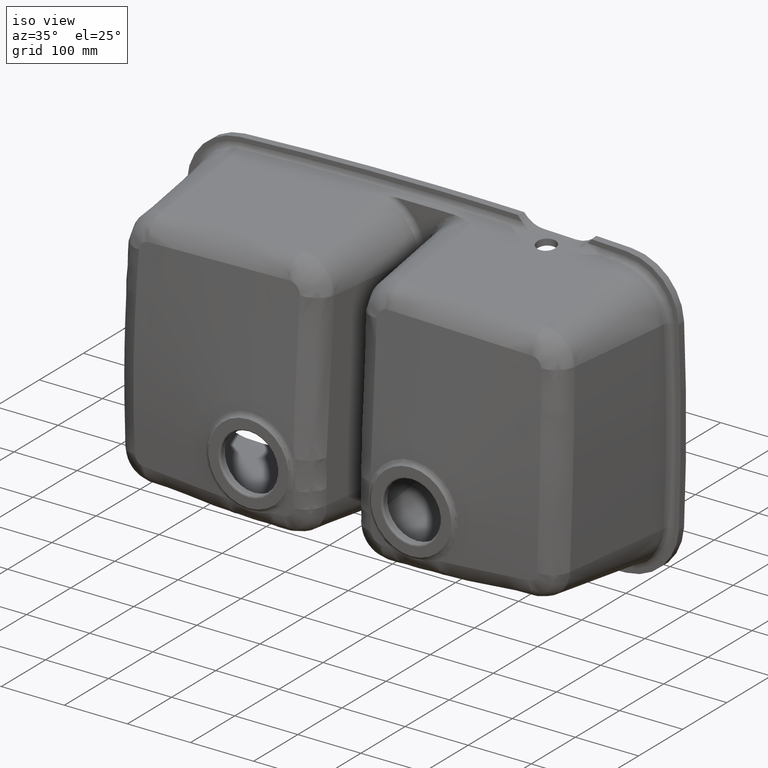
[diagram: clean part render]
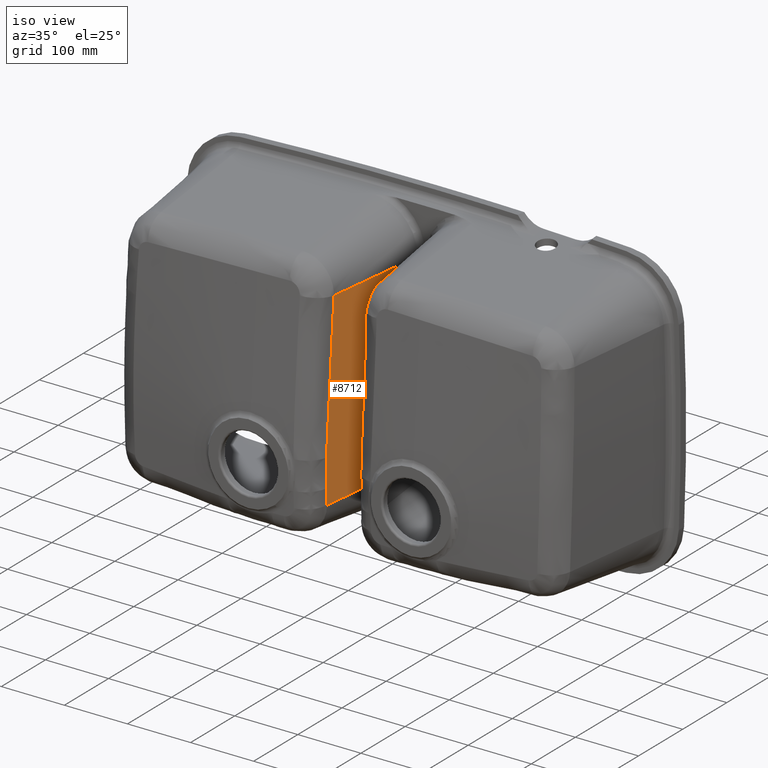
[diagram: same view with one face highlighted and labeled with its STEP entity id]
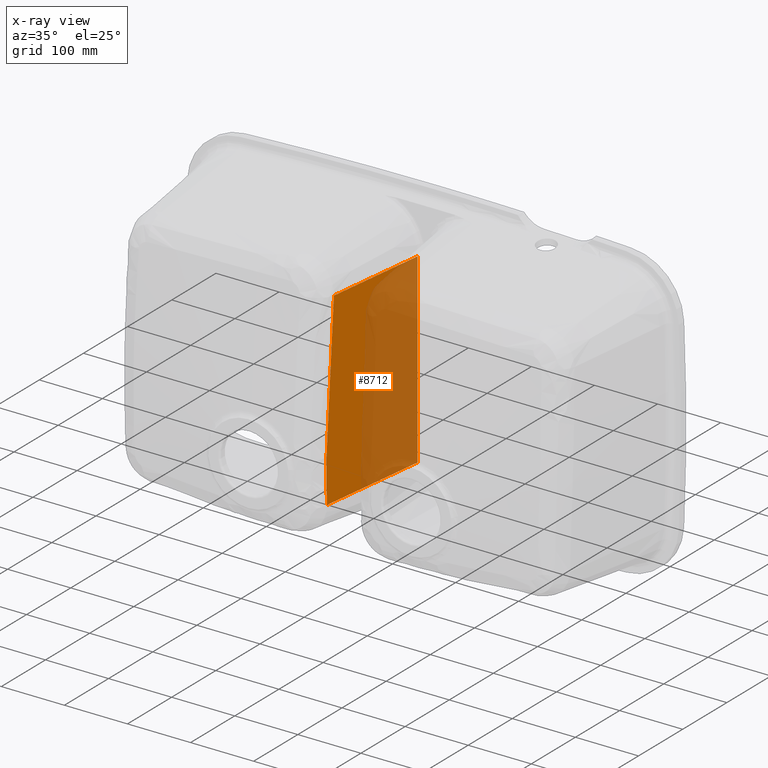
[diagram: x-ray of the same camera — body ghosted, the highlighted face saturated]
A machine part, iso view. The second image highlights one B-rep face of the part: STEP entity #8712.
The next image is the same camera in x-ray: the body ghosted, the highlighted face saturated — about 59% of this face is hidden behind the body in this view.
In plain terms, the highlighted planar face has unit normal (-0.9925, 0.1219, 0).
Its self-contained STEP definition (entity closure, byte-faithful):
#26 = CARTESIAN_POINT ( 'NONE',  ( 153.9304104006416200, 17.43875703980195600, -147.6775538111063200 ) ) ;
#224 = CARTESIAN_POINT ( 'NONE',  ( 177.2839146305344700, 207.6377857952190300, -147.6775538111063200 ) ) ;
#232 = CARTESIAN_POINT ( 'NONE',  ( 153.7793953125143400, 16.20883784624239600, -108.6161641611665900 ) ) ;
#463 = CARTESIAN_POINT ( 'NONE',  ( 154.0068806145349400, 18.06155695317069400, -41.45015478160866700 ) ) ;
#491 = B_SPLINE_CURVE_WITH_KNOTS ( 'NONE', 3,
 ( #2272, #1529, #3090, #4626 ),
 .UNSPECIFIED., .F., .F.,
 ( 4, 4 ),
 ( 0.2713427908445174600, 0.2957444310478757900 ),
 .UNSPECIFIED. ) ;
#788 = VECTOR ( 'NONE', #5444, 1000.000000000000000 ) ;
#803 = VERTEX_POINT ( 'NONE', #6916 ) ;
#1130 = DIRECTION ( 'NONE',  ( -0.9925461516413219800, 0.1218693434051477400, 9.354964095796231400E-017 ) ) ;
#1167 = EDGE_CURVE ( 'NONE', #7039, #1191, #491, .T. ) ;
#1191 = VERTEX_POINT ( 'NONE', #26 ) ;
#1251 = CARTESIAN_POINT ( 'NONE',  ( 153.8253751527536500, 16.58331359385415700, -79.34273651181291600 ) ) ;
#1288 = CARTESIAN_POINT ( 'NONE',  ( 175.3373163350951000, 191.7840149210555000, 147.6879393134511800 ) ) ;
#1294 = CARTESIAN_POINT ( 'NONE',  ( 154.4304017031977000, 21.51085941879286900, 15.31559253766440100 ) ) ;
#1529 = CARTESIAN_POINT ( 'NONE',  ( 153.8497299934948300, 16.78166785404874900, -131.3966274004560000 ) ) ;
#1759 = CARTESIAN_POINT ( 'NONE',  ( 153.7793953125142800, 16.20883784624237100, -93.97945033648974800 ) ) ;
#2020 = CARTESIAN_POINT ( 'NONE',  ( 155.2461820557504700, 28.15485721911706900, 109.8720365223787100 ) ) ;
#2052 = CARTESIAN_POINT ( 'NONE',  ( 155.5863013241900600, 30.92490636811789200, 147.6879393134511800 ) ) ;
#2272 = CARTESIAN_POINT ( 'NONE',  ( 153.8253751527536200, 16.58331359385418200, -123.2528779858434100 ) ) ;
#2606 = VERTEX_POINT ( 'NONE', #1251 ) ;
#2753 = LINE ( 'NONE', #1288, #3368 ) ;
#2803 = CARTESIAN_POINT ( 'NONE',  ( 154.7471167601119900, 24.09029656125872200, 53.14280966604947300 ) ) ;
#2805 = EDGE_LOOP ( 'NONE', ( #6669, #4546, #3649, #5955, #8776, #5104 ) ) ;
#2834 = CARTESIAN_POINT ( 'NONE',  ( 153.8537303172505800, 16.81424787653928000, -69.86136249148019300 ) ) ;
#3090 = CARTESIAN_POINT ( 'NONE',  ( 153.8862519037006400, 17.07911494297597300, -139.5378755558169000 ) ) ;
#3368 = VECTOR ( 'NONE', #9702, 1000.000000000000000 ) ;
#3570 = VERTEX_POINT ( 'NONE', #7402 ) ;
#3588 = CARTESIAN_POINT ( 'NONE',  ( 154.9120008076480700, 25.43316936483964600, 72.05326310415468100 ) ) ;
#3649 = ORIENTED_EDGE ( 'NONE', *, *, #9625, .T. ) ;
#3792 = VECTOR ( 'NONE', #4166, 1000.000000000000000 ) ;
#3874 = B_SPLINE_CURVE_WITH_KNOTS ( 'NONE', 3,
 ( #2052, #7467, #2020, #3588, #2803, #4331, #1294, #5153, #9814, #8263, #463, #5961, #2834, #9093 ),
 .UNSPECIFIED., .F., .F.,
 ( 4, 2, 2, 2, 2, 2, 4 ),
 ( 0.0000000000000000000, 0.05687187416201309300, 0.1137437483240261900, 0.1421796854050327300, 0.1706156224860392900, 0.1990515595670458200, 0.2274874966480523700 ),
 .UNSPECIFIED. ) ;
#4105 = CARTESIAN_POINT ( 'NONE',  ( 153.8253751527536500, 16.58331359385415700, -79.34273651181291600 ) ) ;
#4166 = DIRECTION ( 'NONE',  ( -0.1218693434051477400, -0.9925461516413219800, 0.0000000000000000000 ) ) ;
#4204 = CARTESIAN_POINT ( 'NONE',  ( 153.8144319490760700, 16.49418835207185900, -83.00191496798213100 ) ) ;
#4211 = CARTESIAN_POINT ( 'NONE',  ( 177.2839146305344700, 207.6377857952190300, -147.6775538111063200 ) ) ;
#4331 = CARTESIAN_POINT ( 'NONE',  ( 154.5084655170020900, 22.14663816190489200, 24.77293582211810700 ) ) ;
#4546 = ORIENTED_EDGE ( 'NONE', *, *, #9307, .T. ) ;
#4624 = B_SPLINE_CURVE_WITH_KNOTS ( 'NONE', 3,
 ( #4105, #4204, #6491, #1759, #9565, #232, #8106, #7233, #9627 ),
 .UNSPECIFIED., .F., .F.,
 ( 4, 2, 1, 2, 4 ),
 ( 0.0000000000000000000, 0.01097753536850762400, 0.02195507073701524800, 0.03293260610552287100, 0.04391014147403049500 ),
 .UNSPECIFIED. ) ;
#4626 = CARTESIAN_POINT ( 'NONE',  ( 153.9304104006416200, 17.43875703980195600, -147.6775538111063200 ) ) ;
#4634 = LINE ( 'NONE', #224, #3792 ) ;
#4848 = EDGE_CURVE ( 'NONE', #3570, #1191, #4634, .T. ) ;
#5104 = ORIENTED_EDGE ( 'NONE', *, *, #1167, .T. ) ;
#5153 = CARTESIAN_POINT ( 'NONE',  ( 154.2794744572055700, 20.28165564201293200, -3.601608060468134600 ) ) ;
#5444 = DIRECTION ( 'NONE',  ( -0.1218693434051477400, -0.9925461516413219800, -7.462345065765189300E-018 ) ) ;
#5885 = AXIS2_PLACEMENT_3D ( 'NONE', #4211, #1130, #6527 ) ;
#5955 = ORIENTED_EDGE ( 'NONE', *, *, #9380, .T. ) ;
#5961 = CARTESIAN_POINT ( 'NONE',  ( 153.8985321879310100, 17.17912983198256800, -60.38793932995942300 ) ) ;
#6178 = CARTESIAN_POINT ( 'NONE',  ( 155.5863013241900600, 30.92490636811789200, 147.6879393134511800 ) ) ;
#6491 = CARTESIAN_POINT ( 'NONE',  ( 153.8003010810180600, 16.37910166727951400, -86.66109342415136000 ) ) ;
#6527 = DIRECTION ( 'NONE',  ( -0.1218693434051477400, -0.9925461516413219800, 0.0000000000000000000 ) ) ;
#6669 = ORIENTED_EDGE ( 'NONE', *, *, #4848, .F. ) ;
#6916 = CARTESIAN_POINT ( 'NONE',  ( 175.3373163350952100, 191.7840149210555000, 147.6879393134511800 ) ) ;
#7039 = VERTEX_POINT ( 'NONE', #9359 ) ;
#7233 = CARTESIAN_POINT ( 'NONE',  ( 153.8144319490760900, 16.49418835207189800, -119.5936995296742300 ) ) ;
#7402 = CARTESIAN_POINT ( 'NONE',  ( 175.3373163350950700, 191.7840149210555000, -147.6775538111063200 ) ) ;
#7467 = CARTESIAN_POINT ( 'NONE',  ( 155.4156705821202400, 29.53523049343989400, 128.7802640095426900 ) ) ;
#7820 = CARTESIAN_POINT ( 'NONE',  ( 177.2839146305346400, 207.6377857952190300, 147.6879393134511800 ) ) ;
#7980 = EDGE_CURVE ( 'NONE', #2606, #7039, #4624, .T. ) ;
#8083 = PLANE ( 'NONE',  #5885 ) ;
#8106 = CARTESIAN_POINT ( 'NONE',  ( 153.8003010810180600, 16.37910166727954600, -115.9345210735050400 ) ) ;
#8263 = CARTESIAN_POINT ( 'NONE',  ( 154.0703013941690400, 18.57807775324317100, -31.98573259053576800 ) ) ;
#8712 = ADVANCED_FACE ( 'NONE', ( #9993 ), #8083, .F. ) ;
#8776 = ORIENTED_EDGE ( 'NONE', *, *, #7980, .T. ) ;
#8817 = VERTEX_POINT ( 'NONE', #6178 ) ;
#9093 = CARTESIAN_POINT ( 'NONE',  ( 153.8253751527536500, 16.58331359385415700, -79.34273651181291600 ) ) ;
#9307 = EDGE_CURVE ( 'NONE', #3570, #803, #2753, .T. ) ;
#9359 = CARTESIAN_POINT ( 'NONE',  ( 153.8253751527536200, 16.58331359385418200, -123.2528779858434100 ) ) ;
#9371 = LINE ( 'NONE', #7820, #788 ) ;
#9380 = EDGE_CURVE ( 'NONE', #8817, #2606, #3874, .T. ) ;
#9565 = CARTESIAN_POINT ( 'NONE',  ( 153.7661843826324200, 16.10124345664791100, -101.2978072488281800 ) ) ;
#9625 = EDGE_CURVE ( 'NONE', #803, #8817, #9371, .T. ) ;
#9627 = CARTESIAN_POINT ( 'NONE',  ( 153.8253751527536200, 16.58331359385418200, -123.2528779858434100 ) ) ;
#9702 = DIRECTION ( 'NONE',  ( 9.425218243329454300E-017, 0.0000000000000000000, 1.000000000000000000 ) ) ;
#9814 = CARTESIAN_POINT ( 'NONE',  ( 154.2065532828572700, 19.68776033618546300, -13.06143745975722600 ) ) ;
#9993 = FACE_OUTER_BOUND ( 'NONE', #2805, .T. ) ;